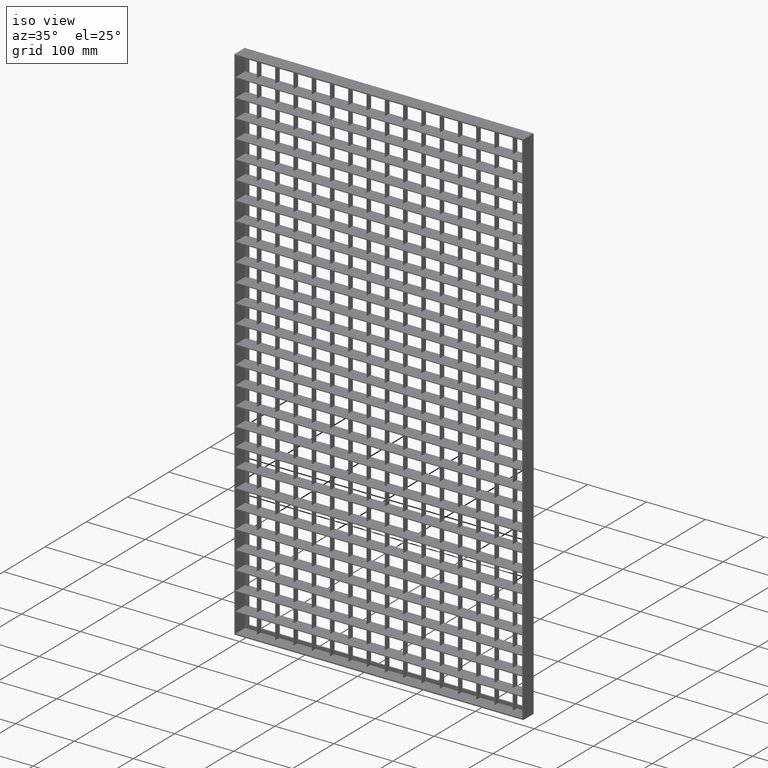
[diagram: clean part render]
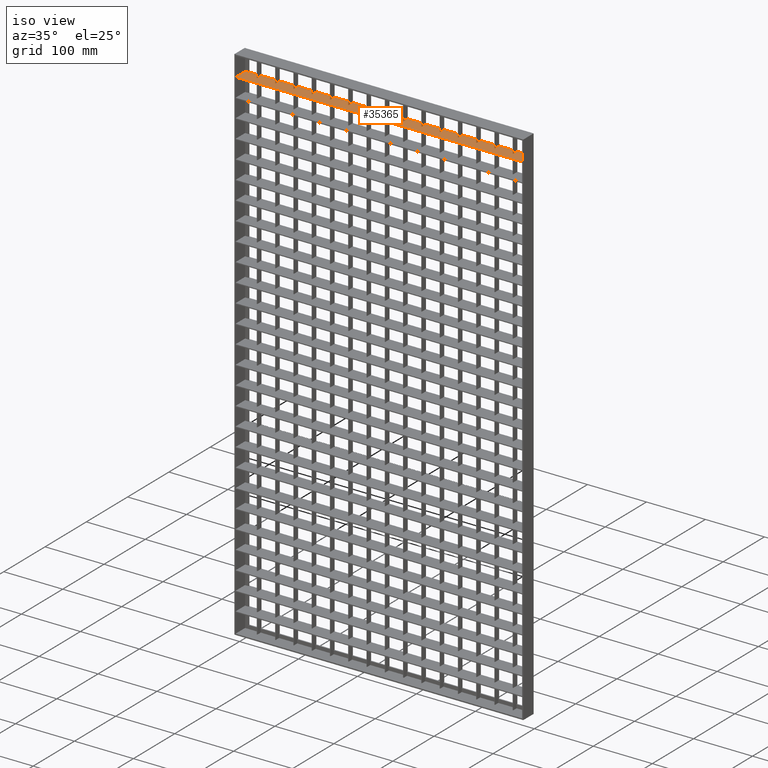
[diagram: same view with one face highlighted and labeled with its STEP entity id]
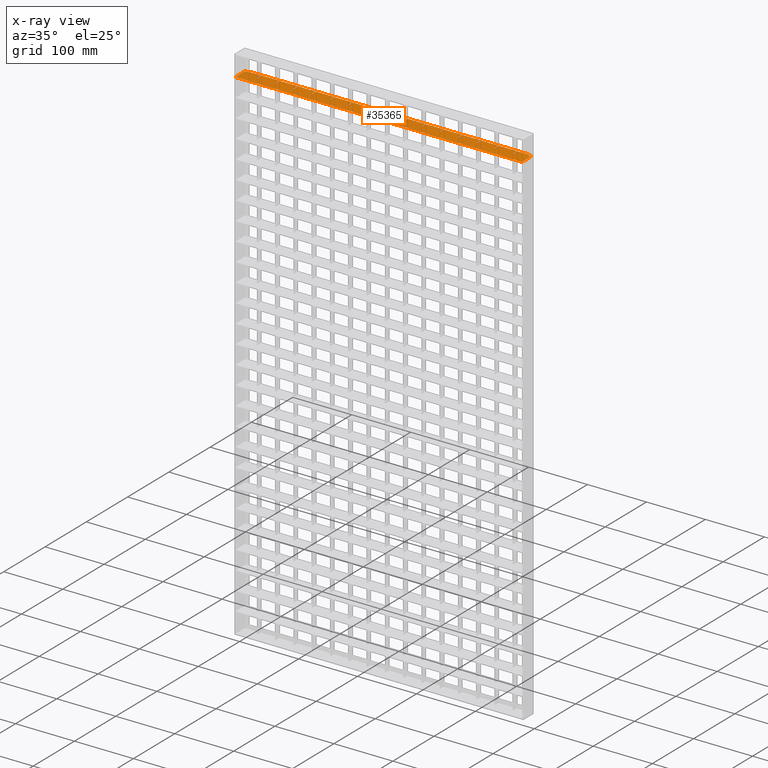
[diagram: x-ray of the same camera — body ghosted, the highlighted face saturated]
A machine part, iso view. The second image highlights one B-rep face of the part: STEP entity #35365.
The next image is the same camera in x-ray: the body ghosted, the highlighted face saturated — about 0% of this face is hidden behind the body in this view.
In plain terms, the highlighted planar face has unit normal (0, 0, 1).
Its self-contained STEP definition (entity closure, byte-faithful):
#45 = CARTESIAN_POINT ( 'NONE',  ( 400.4999999999999400, 2.500000000000000400, -34.75000000000039100 ) ) ;
#195 = CARTESIAN_POINT ( 'NONE',  ( 213.5000000000000000, 12.50000000000000000, -34.75000000000039100 ) ) ;
#239 = DIRECTION ( 'NONE',  ( 0.0000000000000000000, -1.000000000000000000, 0.0000000000000000000 ) ) ;
#420 = ORIENTED_EDGE ( 'NONE', *, *, #40923, .T. ) ;
#457 = EDGE_CURVE ( 'NONE', #58405, #62371, #7587, .T. ) ;
#1159 = VERTEX_POINT ( 'NONE', #25855 ) ;
#1256 = CARTESIAN_POINT ( 'NONE',  ( 89.50000000000000000, 12.50000000000000000, -34.75000000000039100 ) ) ;
#1437 = DIRECTION ( 'NONE',  ( -0.0000000000000000000, 1.000000000000000000, 0.0000000000000000000 ) ) ;
#1441 = LINE ( 'NONE', #50923, #51325 ) ;
#1458 = EDGE_CURVE ( 'NONE', #45256, #39838, #32324, .T. ) ;
#1656 = DIRECTION ( 'NONE',  ( 0.0000000000000000000, -1.000000000000000000, 0.0000000000000000000 ) ) ;
#1835 = VECTOR ( 'NONE', #16561, 1000.000000000000000 ) ;
#1879 = CARTESIAN_POINT ( 'NONE',  ( 368.5000000000000600, 2.500000000000000900, -34.75000000000039100 ) ) ;
#2067 = LINE ( 'NONE', #33816, #25485 ) ;
#2158 = DIRECTION ( 'NONE',  ( 0.0000000000000000000, -1.000000000000000000, 0.0000000000000000000 ) ) ;
#2196 = LINE ( 'NONE', #51690, #43740 ) ;
#2312 = PLANE ( 'NONE',  #35606 ) ;
#2340 = VERTEX_POINT ( 'NONE', #1879 ) ;
#2350 = VERTEX_POINT ( 'NONE', #50255 ) ;
#2392 = CARTESIAN_POINT ( 'NONE',  ( 513.0449595727365000, 12.50000000000015500, -34.75000000000039100 ) ) ;
#2417 = CARTESIAN_POINT ( 'NONE',  ( 513.0449595727365000, 12.50000000000015500, -34.75000000000039100 ) ) ;
#2425 = CARTESIAN_POINT ( 'NONE',  ( 399.4999999999999400, -12.49999999999984500, -34.75000000000039100 ) ) ;
#2435 = VECTOR ( 'NONE', #14772, 1000.000000000000000 ) ;
#2487 = VERTEX_POINT ( 'NONE', #12363 ) ;
#2520 = DIRECTION ( 'NONE',  ( 0.0000000000000000000, 0.0000000000000000000, 1.000000000000000000 ) ) ;
#2525 = ORIENTED_EDGE ( 'NONE', *, *, #7518, .T. ) ;
#2628 = ORIENTED_EDGE ( 'NONE', *, *, #20465, .F. ) ;
#2955 = CARTESIAN_POINT ( 'NONE',  ( 275.4999999999999400, 2.500000000000000900, -34.75000000000039100 ) ) ;
#3207 = ORIENTED_EDGE ( 'NONE', *, *, #43802, .T. ) ;
#3215 = CARTESIAN_POINT ( 'NONE',  ( 461.5000000000000000, 12.50000000000014000, -34.75000000000039100 ) ) ;
#3291 = LINE ( 'NONE', #30317, #32016 ) ;
#3404 = VERTEX_POINT ( 'NONE', #1256 ) ;
#3492 = LINE ( 'NONE', #30544, #39013 ) ;
#3680 = CARTESIAN_POINT ( 'NONE',  ( 430.5000000000000000, -12.49999999999984500, -34.75000000000039100 ) ) ;
#3779 = VECTOR ( 'NONE', #27088, 1000.000000000000000 ) ;
#3806 = ORIENTED_EDGE ( 'NONE', *, *, #27882, .T. ) ;
#3833 = CARTESIAN_POINT ( 'NONE',  ( 2.000000000000001800, -12.50000000000000200, -34.75000000000039100 ) ) ;
#4048 = VERTEX_POINT ( 'NONE', #19305 ) ;
#4051 = LINE ( 'NONE', #42878, #33505 ) ;
#4130 = CARTESIAN_POINT ( 'NONE',  ( 306.5000000000000000, 2.500000000000000900, -34.75000000000039100 ) ) ;
#4219 = VECTOR ( 'NONE', #29407, 1000.000000000000000 ) ;
#4289 = LINE ( 'NONE', #30604, #54202 ) ;
#4372 = CARTESIAN_POINT ( 'NONE',  ( 90.50000000000002800, 2.500000000000000400, -34.75000000000039100 ) ) ;
#4667 = DIRECTION ( 'NONE',  ( 0.0000000000000000000, -1.000000000000000000, 0.0000000000000000000 ) ) ;
#5007 = CARTESIAN_POINT ( 'NONE',  ( 513.0449595727365000, 2.499999999999977800, -34.75000000000039100 ) ) ;
#5364 = EDGE_CURVE ( 'NONE', #1159, #47856, #39196, .T. ) ;
#5405 = EDGE_CURVE ( 'NONE', #62405, #55185, #40693, .T. ) ;
#5467 = VERTEX_POINT ( 'NONE', #35978 ) ;
#5498 = LINE ( 'NONE', #42215, #24472 ) ;
#5500 = VERTEX_POINT ( 'NONE', #22624 ) ;
#5584 = VERTEX_POINT ( 'NONE', #22829 ) ;
#5623 = LINE ( 'NONE', #15605, #62361 ) ;
#5758 = CARTESIAN_POINT ( 'NONE',  ( 307.5000000000000000, 2.500000000000000400, -34.75000000000039100 ) ) ;
#6011 = DIRECTION ( 'NONE',  ( 0.0000000000000000000, -1.000000000000000000, 0.0000000000000000000 ) ) ;
#6021 = CARTESIAN_POINT ( 'NONE',  ( 2.000000000000002700, 10.50000000000000500, -34.75000000000039100 ) ) ;
#6086 = ORIENTED_EDGE ( 'NONE', *, *, #24263, .F. ) ;
#6192 = EDGE_CURVE ( 'NONE', #3404, #1159, #15578, .T. ) ;
#6199 = CARTESIAN_POINT ( 'NONE',  ( 121.5000000000000000, 12.50000000000003600, -34.75000000000039100 ) ) ;
#6449 = DIRECTION ( 'NONE',  ( -1.000000000000000000, 4.336808689942013800E-016, 0.0000000000000000000 ) ) ;
#6481 = EDGE_CURVE ( 'NONE', #58776, #50139, #48891, .T. ) ;
#6517 = EDGE_CURVE ( 'NONE', #39181, #38581, #3492, .T. ) ;
#6590 = VERTEX_POINT ( 'NONE', #56144 ) ;
#6814 = LINE ( 'NONE', #21499, #15082 ) ;
#7056 = CARTESIAN_POINT ( 'NONE',  ( 513.0449595727365000, 12.50000000000015500, -34.75000000000039100 ) ) ;
#7086 = VERTEX_POINT ( 'NONE', #53887 ) ;
#7150 = VECTOR ( 'NONE', #55174, 1000.000000000000000 ) ;
#7217 = DIRECTION ( 'NONE',  ( -1.000000000000000000, 4.336808689942013800E-016, 0.0000000000000000000 ) ) ;
#7249 = VERTEX_POINT ( 'NONE', #60669 ) ;
#7251 = EDGE_CURVE ( 'NONE', #37917, #39838, #53347, .T. ) ;
#7346 = VECTOR ( 'NONE', #18646, 1000.000000000000000 ) ;
#7393 = EDGE_CURVE ( 'NONE', #49762, #15884, #26015, .T. ) ;
#7452 = DIRECTION ( 'NONE',  ( 0.0000000000000000000, -1.000000000000000000, 0.0000000000000000000 ) ) ;
#7518 = EDGE_CURVE ( 'NONE', #4048, #52574, #36692, .T. ) ;
#7587 = LINE ( 'NONE', #39836, #17408 ) ;
#7639 = DIRECTION ( 'NONE',  ( -1.000000000000000000, -3.061616997868382600E-016, 0.0000000000000000000 ) ) ;
#7771 = CARTESIAN_POINT ( 'NONE',  ( 275.4999999999999400, -12.49999999999984500, -34.75000000000039100 ) ) ;
#7781 = EDGE_CURVE ( 'NONE', #11645, #37917, #60174, .T. ) ;
#8166 = LINE ( 'NONE', #7771, #27108 ) ;
#8193 = ORIENTED_EDGE ( 'NONE', *, *, #47015, .T. ) ;
#8197 = VECTOR ( 'NONE', #31171, 1000.000000000000000 ) ;
#8275 = VECTOR ( 'NONE', #19281, 1000.000000000000000 ) ;
#8292 = DIRECTION ( 'NONE',  ( -8.673617379884036500E-016, -1.000000000000000000, 0.0000000000000000000 ) ) ;
#8324 = CARTESIAN_POINT ( 'NONE',  ( 214.5000000000000300, 2.500000000000000400, -34.75000000000039100 ) ) ;
#8490 = DIRECTION ( 'NONE',  ( -0.0000000000000000000, 1.000000000000000000, 0.0000000000000000000 ) ) ;
#8650 = DIRECTION ( 'NONE',  ( 0.0000000000000000000, -1.000000000000000000, 0.0000000000000000000 ) ) ;
#8747 = VECTOR ( 'NONE', #58371, 1000.000000000000000 ) ;
#8953 = VECTOR ( 'NONE', #8292, 1000.000000000000000 ) ;
#8996 = DIRECTION ( 'NONE',  ( -1.000000000000000000, -3.061616997868382600E-016, 0.0000000000000000000 ) ) ;
#9010 = LINE ( 'NONE', #18197, #3779 ) ;
#9073 = DIRECTION ( 'NONE',  ( -0.0000000000000000000, 1.000000000000000000, 0.0000000000000000000 ) ) ;
#9214 = VECTOR ( 'NONE', #7452, 1000.000000000000000 ) ;
#9416 = DIRECTION ( 'NONE',  ( -1.000000000000000000, 4.336808689942013800E-016, 0.0000000000000000000 ) ) ;
#9649 = VERTEX_POINT ( 'NONE', #3215 ) ;
#9705 = CARTESIAN_POINT ( 'NONE',  ( 513.0449595727365000, 12.50000000000015500, -34.75000000000039100 ) ) ;
#9773 = CARTESIAN_POINT ( 'NONE',  ( 337.5000000000000000, 12.50000000000010100, -34.75000000000039100 ) ) ;
#10568 = LINE ( 'NONE', #3680, #26496 ) ;
#10656 = ORIENTED_EDGE ( 'NONE', *, *, #13612, .T. ) ;
#10848 = CARTESIAN_POINT ( 'NONE',  ( 338.5000000000000000, -12.49999999999984500, -34.75000000000039100 ) ) ;
#11087 = CARTESIAN_POINT ( 'NONE',  ( 28.49999999999997200, 2.500000000000000400, -34.75000000000039100 ) ) ;
#11119 = VERTEX_POINT ( 'NONE', #19191 ) ;
#11343 = DIRECTION ( 'NONE',  ( -1.000000000000000000, -3.061616997868382600E-016, 0.0000000000000000000 ) ) ;
#11354 = VECTOR ( 'NONE', #48939, 1000.000000000000000 ) ;
#11412 = ORIENTED_EDGE ( 'NONE', *, *, #25283, .T. ) ;
#11634 = CARTESIAN_POINT ( 'NONE',  ( 513.0449595727365000, 12.50000000000015500, -34.75000000000039100 ) ) ;
#11645 = VERTEX_POINT ( 'NONE', #42379 ) ;
#12000 = DIRECTION ( 'NONE',  ( -1.000000000000000000, -3.061616997868382600E-016, 0.0000000000000000000 ) ) ;
#12183 = DIRECTION ( 'NONE',  ( -0.0000000000000000000, 1.000000000000000000, 0.0000000000000000000 ) ) ;
#12193 = CARTESIAN_POINT ( 'NONE',  ( 461.5000000000000000, 2.500000000000000900, -34.75000000000039100 ) ) ;
#12363 = CARTESIAN_POINT ( 'NONE',  ( 152.4999999999999700, 2.500000000000000400, -34.75000000000039100 ) ) ;
#12712 = VECTOR ( 'NONE', #7217, 1000.000000000000000 ) ;
#13186 = EDGE_CURVE ( 'NONE', #6590, #62405, #49330, .T. ) ;
#13612 = EDGE_CURVE ( 'NONE', #43448, #27538, #60664, .T. ) ;
#13655 = CARTESIAN_POINT ( 'NONE',  ( 513.0449595727365000, 12.50000000000015500, -34.75000000000039100 ) ) ;
#13754 = CARTESIAN_POINT ( 'NONE',  ( 399.4999999999999400, 2.500000000000000900, -34.75000000000039100 ) ) ;
#14071 = DIRECTION ( 'NONE',  ( -1.000000000000000000, -3.061616997868382600E-016, 0.0000000000000000000 ) ) ;
#14178 = LINE ( 'NONE', #2392, #53583 ) ;
#14206 = ORIENTED_EDGE ( 'NONE', *, *, #29432, .F. ) ;
#14285 = LINE ( 'NONE', #31249, #33229 ) ;
#14393 = CARTESIAN_POINT ( 'NONE',  ( 513.0449595727365000, 2.500000000000156800, -34.75000000000039100 ) ) ;
#14483 = LINE ( 'NONE', #9705, #51591 ) ;
#14493 = DIRECTION ( 'NONE',  ( 0.0000000000000000000, -1.000000000000000000, 0.0000000000000000000 ) ) ;
#14514 = VECTOR ( 'NONE', #12000, 1000.000000000000000 ) ;
#14598 = LINE ( 'NONE', #19106, #22940 ) ;
#14745 = ORIENTED_EDGE ( 'NONE', *, *, #31006, .T. ) ;
#14761 = DIRECTION ( 'NONE',  ( 1.000000000000000000, 4.336808689942013800E-016, -0.0000000000000000000 ) ) ;
#14772 = DIRECTION ( 'NONE',  ( 0.0000000000000000000, -1.000000000000000000, 0.0000000000000000000 ) ) ;
#14779 = LINE ( 'NONE', #58047, #48756 ) ;
#14841 = LINE ( 'NONE', #53612, #45866 ) ;
#14847 = CARTESIAN_POINT ( 'NONE',  ( 58.50000000000000000, -12.49999999999984500, -34.75000000000039100 ) ) ;
#14872 = EDGE_CURVE ( 'NONE', #44880, #11645, #54107, .T. ) ;
#14873 = ORIENTED_EDGE ( 'NONE', *, *, #17688, .F. ) ;
#15082 = VECTOR ( 'NONE', #11343, 1000.000000000000000 ) ;
#15199 = CARTESIAN_POINT ( 'NONE',  ( 7.999999999999994700, 12.50000000000000500, -34.75000000000039100 ) ) ;
#15231 = VERTEX_POINT ( 'NONE', #53227 ) ;
#15314 = CARTESIAN_POINT ( 'NONE',  ( 368.5000000000000600, -12.49999999999984500, -34.75000000000039100 ) ) ;
#15578 = LINE ( 'NONE', #18967, #41300 ) ;
#15605 = CARTESIAN_POINT ( 'NONE',  ( 513.0449595727365000, 12.50000000000015500, -34.75000000000039100 ) ) ;
#15731 = VERTEX_POINT ( 'NONE', #8324 ) ;
#15742 = ORIENTED_EDGE ( 'NONE', *, *, #22016, .T. ) ;
#15841 = EDGE_CURVE ( 'NONE', #40349, #46988, #14598, .T. ) ;
#15884 = VERTEX_POINT ( 'NONE', #4130 ) ;
#16029 = DIRECTION ( 'NONE',  ( -1.000000000000000000, -3.061616997868382600E-016, 0.0000000000000000000 ) ) ;
#16214 = ORIENTED_EDGE ( 'NONE', *, *, #42338, .T. ) ;
#16561 = DIRECTION ( 'NONE',  ( -1.000000000000000000, -3.061616997868382600E-016, 0.0000000000000000000 ) ) ;
#16577 = LINE ( 'NONE', #24867, #57438 ) ;
#16787 = CARTESIAN_POINT ( 'NONE',  ( 513.0449595727365000, 2.500000000000170500, -34.75000000000039100 ) ) ;
#16896 = ORIENTED_EDGE ( 'NONE', *, *, #43835, .T. ) ;
#16935 = DIRECTION ( 'NONE',  ( 1.000000000000000000, 4.336808689942013800E-016, -0.0000000000000000000 ) ) ;
#16944 = ORIENTED_EDGE ( 'NONE', *, *, #26395, .T. ) ;
#17064 = LINE ( 'NONE', #43558, #4219 ) ;
#17111 = ORIENTED_EDGE ( 'NONE', *, *, #53057, .F. ) ;
#17311 = LINE ( 'NONE', #45991, #42221 ) ;
#17408 = VECTOR ( 'NONE', #54448, 1000.000000000000000 ) ;
#17483 = CARTESIAN_POINT ( 'NONE',  ( 245.5000000000000000, 12.50000000000007300, -34.75000000000039100 ) ) ;
#17688 = EDGE_CURVE ( 'NONE', #15731, #50170, #16577, .T. ) ;
#17770 = CARTESIAN_POINT ( 'NONE',  ( 214.5000000000000300, 12.50000000000006400, -34.75000000000039100 ) ) ;
#17909 = EDGE_CURVE ( 'NONE', #59274, #33828, #2196, .T. ) ;
#18197 = CARTESIAN_POINT ( 'NONE',  ( 513.0449595727365000, 2.500000000000210500, -34.75000000000039100 ) ) ;
#18526 = LINE ( 'NONE', #10848, #29133 ) ;
#18580 = LINE ( 'NONE', #57818, #50383 ) ;
#18587 = ORIENTED_EDGE ( 'NONE', *, *, #48136, .T. ) ;
#18640 = LINE ( 'NONE', #30819, #38317 ) ;
#18646 = DIRECTION ( 'NONE',  ( -1.000000000000000000, -3.061616997868382600E-016, 0.0000000000000000000 ) ) ;
#18767 = CARTESIAN_POINT ( 'NONE',  ( 90.50000000000002800, -12.49999999999984500, -34.75000000000039100 ) ) ;
#18927 = LINE ( 'NONE', #42483, #41596 ) ;
#18967 = CARTESIAN_POINT ( 'NONE',  ( 89.50000000000002800, -12.49999999999984500, -34.75000000000039100 ) ) ;
#19071 = EDGE_CURVE ( 'NONE', #46988, #15731, #45087, .T. ) ;
#19106 = CARTESIAN_POINT ( 'NONE',  ( 213.5000000000000300, -12.49999999999984500, -34.75000000000039100 ) ) ;
#19191 = CARTESIAN_POINT ( 'NONE',  ( 244.5000000000000000, 2.500000000000000000, -34.75000000000039100 ) ) ;
#19281 = DIRECTION ( 'NONE',  ( 1.000000000000000000, 4.336808689942013800E-016, -0.0000000000000000000 ) ) ;
#19305 = CARTESIAN_POINT ( 'NONE',  ( 462.5000000000000000, 2.500000000000000400, -34.75000000000039100 ) ) ;
#19329 = EDGE_CURVE ( 'NONE', #62371, #34275, #22414, .T. ) ;
#19388 = DIRECTION ( 'NONE',  ( -0.0000000000000000000, 1.000000000000000000, 0.0000000000000000000 ) ) ;
#19449 = CARTESIAN_POINT ( 'NONE',  ( 400.4999999999999400, -12.49999999999984500, -34.75000000000039100 ) ) ;
#19552 = CARTESIAN_POINT ( 'NONE',  ( 338.5000000000000000, 12.50000000000000000, -34.75000000000039100 ) ) ;
#19619 = CARTESIAN_POINT ( 'NONE',  ( 28.50000000000002500, 12.50000000000000500, -34.75000000000039100 ) ) ;
#19712 = ORIENTED_EDGE ( 'NONE', *, *, #22108, .F. ) ;
#19724 = DIRECTION ( 'NONE',  ( 0.0000000000000000000, -1.000000000000000000, 0.0000000000000000000 ) ) ;
#20007 = LINE ( 'NONE', #56699, #29832 ) ;
#20050 = CARTESIAN_POINT ( 'NONE',  ( 27.49999999999996800, 2.499999999999999600, -34.75000000000039100 ) ) ;
#20241 = VECTOR ( 'NONE', #14071, 1000.000000000000000 ) ;
#20372 = EDGE_CURVE ( 'NONE', #45256, #7249, #2067, .T. ) ;
#20465 = EDGE_CURVE ( 'NONE', #2487, #48224, #4289, .T. ) ;
#20615 = EDGE_CURVE ( 'NONE', #53032, #30776, #18640, .T. ) ;
#20786 = CARTESIAN_POINT ( 'NONE',  ( 152.5000000000000300, 12.50000000000004400, -34.75000000000039100 ) ) ;
#20974 = VECTOR ( 'NONE', #56940, 1000.000000000000000 ) ;
#21076 = ORIENTED_EDGE ( 'NONE', *, *, #5405, .T. ) ;
#21499 = CARTESIAN_POINT ( 'NONE',  ( 513.0449595727365000, 12.50000000000015500, -34.75000000000039100 ) ) ;
#21557 = VECTOR ( 'NONE', #2158, 1000.000000000000000 ) ;
#21934 = DIRECTION ( 'NONE',  ( 0.0000000000000000000, -1.000000000000000000, 0.0000000000000000000 ) ) ;
#22015 = CARTESIAN_POINT ( 'NONE',  ( 338.5000000000000000, 2.500000000000000400, -34.75000000000039100 ) ) ;
#22016 = EDGE_CURVE ( 'NONE', #15884, #43327, #4051, .T. ) ;
#22108 = EDGE_CURVE ( 'NONE', #11119, #48457, #51714, .T. ) ;
#22414 = LINE ( 'NONE', #24722, #8747 ) ;
#22493 = ORIENTED_EDGE ( 'NONE', *, *, #6481, .T. ) ;
#22624 = CARTESIAN_POINT ( 'NONE',  ( 244.5000000000000000, 12.50000000000000000, -34.75000000000039100 ) ) ;
#22647 = ORIENTED_EDGE ( 'NONE', *, *, #52038, .T. ) ;
#22684 = CARTESIAN_POINT ( 'NONE',  ( 7.999999999999992900, 10.50000000000000500, -34.75000000000039100 ) ) ;
#22829 = CARTESIAN_POINT ( 'NONE',  ( 369.5000000000000600, 2.500000000000000400, -34.75000000000039100 ) ) ;
#22940 = VECTOR ( 'NONE', #47673, 1000.000000000000000 ) ;
#23041 = VERTEX_POINT ( 'NONE', #3833 ) ;
#23267 = CARTESIAN_POINT ( 'NONE',  ( 400.4999999999999400, 12.50000000000000000, -34.75000000000039100 ) ) ;
#23369 = LINE ( 'NONE', #22684, #8953 ) ;
#23572 = ORIENTED_EDGE ( 'NONE', *, *, #43376, .T. ) ;
#23807 = DIRECTION ( 'NONE',  ( -0.0000000000000000000, 1.000000000000000000, 0.0000000000000000000 ) ) ;
#23810 = VERTEX_POINT ( 'NONE', #38001 ) ;
#23906 = ORIENTED_EDGE ( 'NONE', *, *, #31653, .T. ) ;
#24068 = CARTESIAN_POINT ( 'NONE',  ( 2.000000000000002700, 10.50000000000000500, -34.75000000000039100 ) ) ;
#24263 = EDGE_CURVE ( 'NONE', #30489, #58405, #47570, .T. ) ;
#24372 = EDGE_CURVE ( 'NONE', #42681, #59820, #23369, .T. ) ;
#24472 = VECTOR ( 'NONE', #8996, 1000.000000000000000 ) ;
#24589 = ORIENTED_EDGE ( 'NONE', *, *, #27157, .T. ) ;
#24650 = ORIENTED_EDGE ( 'NONE', *, *, #17909, .T. ) ;
#24701 = VECTOR ( 'NONE', #19388, 1000.000000000000000 ) ;
#24722 = CARTESIAN_POINT ( 'NONE',  ( 183.5000000000000000, -12.49999999999984500, -34.75000000000039100 ) ) ;
#24740 = EDGE_CURVE ( 'NONE', #34916, #46795, #14178, .T. ) ;
#24867 = CARTESIAN_POINT ( 'NONE',  ( 214.5000000000000300, -12.49999999999984500, -34.75000000000039100 ) ) ;
#25244 = CARTESIAN_POINT ( 'NONE',  ( 482.0000000000001700, 10.50000000000000500, -34.75000000000039100 ) ) ;
#25283 = EDGE_CURVE ( 'NONE', #51134, #38347, #28993, .T. ) ;
#25485 = VECTOR ( 'NONE', #4667, 1000.000000000000000 ) ;
#25634 = VERTEX_POINT ( 'NONE', #9773 ) ;
#25654 = EDGE_CURVE ( 'NONE', #50477, #39181, #27440, .T. ) ;
#25792 = ORIENTED_EDGE ( 'NONE', *, *, #31889, .T. ) ;
#25855 = CARTESIAN_POINT ( 'NONE',  ( 89.49999999999997200, 2.500000000000000400, -34.75000000000039100 ) ) ;
#25988 = CARTESIAN_POINT ( 'NONE',  ( 120.5000000000000000, -12.49999999999984500, -34.75000000000039100 ) ) ;
#26015 = LINE ( 'NONE', #42196, #41912 ) ;
#26217 = CARTESIAN_POINT ( 'NONE',  ( 27.49999999999999600, 12.50000000000000000, -34.75000000000039100 ) ) ;
#26303 = CARTESIAN_POINT ( 'NONE',  ( 431.5000000000000000, 2.500000000000000400, -34.75000000000039100 ) ) ;
#26316 = EDGE_CURVE ( 'NONE', #50139, #59274, #59926, .T. ) ;
#26330 = CARTESIAN_POINT ( 'NONE',  ( 430.5000000000000000, 2.500000000000000900, -34.75000000000039100 ) ) ;
#26387 = CARTESIAN_POINT ( 'NONE',  ( 488.0000000000001100, -12.49999999999984500, -34.75000000000039100 ) ) ;
#26395 = EDGE_CURVE ( 'NONE', #50477, #30776, #14483, .T. ) ;
#26496 = VECTOR ( 'NONE', #8490, 1000.000000000000000 ) ;
#26989 = LINE ( 'NONE', #28163, #7346 ) ;
#27088 = DIRECTION ( 'NONE',  ( 1.000000000000000000, 4.336808689942013800E-016, -0.0000000000000000000 ) ) ;
#27108 = VECTOR ( 'NONE', #41574, 1000.000000000000000 ) ;
#27138 = VERTEX_POINT ( 'NONE', #36212 ) ;
#27157 = EDGE_CURVE ( 'NONE', #23810, #51368, #50683, .T. ) ;
#27293 = EDGE_CURVE ( 'NONE', #54996, #53032, #9010, .T. ) ;
#27413 = LINE ( 'NONE', #35717, #14514 ) ;
#27440 = LINE ( 'NONE', #14847, #31982 ) ;
#27538 = VERTEX_POINT ( 'NONE', #45425 ) ;
#27882 = EDGE_CURVE ( 'NONE', #33828, #23810, #43703, .T. ) ;
#28010 = VECTOR ( 'NONE', #37497, 1000.000000000000000 ) ;
#28163 = CARTESIAN_POINT ( 'NONE',  ( 513.0449595727365000, 12.50000000000015500, -34.75000000000039100 ) ) ;
#28226 = EDGE_CURVE ( 'NONE', #3404, #5467, #41414, .T. ) ;
#28347 = VECTOR ( 'NONE', #9416, 1000.000000000000000 ) ;
#28373 = ORIENTED_EDGE ( 'NONE', *, *, #14872, .F. ) ;
#28413 = ORIENTED_EDGE ( 'NONE', *, *, #24372, .T. ) ;
#28571 = EDGE_CURVE ( 'NONE', #62614, #7086, #49816, .T. ) ;
#28591 = LINE ( 'NONE', #60172, #8197 ) ;
#28646 = ORIENTED_EDGE ( 'NONE', *, *, #15841, .F. ) ;
#28706 = VERTEX_POINT ( 'NONE', #36835 ) ;
#28801 = EDGE_CURVE ( 'NONE', #34485, #4048, #45987, .T. ) ;
#28993 = LINE ( 'NONE', #45359, #51706 ) ;
#29133 = VECTOR ( 'NONE', #6011, 1000.000000000000000 ) ;
#29173 = ORIENTED_EDGE ( 'NONE', *, *, #52342, .T. ) ;
#29407 = DIRECTION ( 'NONE',  ( -0.0000000000000000000, 1.000000000000000000, 0.0000000000000000000 ) ) ;
#29432 = EDGE_CURVE ( 'NONE', #38581, #5467, #14841, .T. ) ;
#29435 = ORIENTED_EDGE ( 'NONE', *, *, #43957, .F. ) ;
#29497 = CARTESIAN_POINT ( 'NONE',  ( 151.5000000000000000, 12.50000000000000000, -34.75000000000039100 ) ) ;
#29538 = FACE_OUTER_BOUND ( 'NONE', #51998, .T. ) ;
#29753 = VECTOR ( 'NONE', #1437, 1000.000000000000000 ) ;
#29832 = VECTOR ( 'NONE', #37878, 1000.000000000000000 ) ;
#30155 = EDGE_CURVE ( 'NONE', #7086, #25634, #17064, .T. ) ;
#30317 = CARTESIAN_POINT ( 'NONE',  ( 27.49999999999996800, -12.49999999999984500, -34.75000000000039100 ) ) ;
#30489 = VERTEX_POINT ( 'NONE', #37212 ) ;
#30544 = CARTESIAN_POINT ( 'NONE',  ( 513.0449595727365000, 2.500000000000196300, -34.75000000000039100 ) ) ;
#30604 = CARTESIAN_POINT ( 'NONE',  ( 152.4999999999999700, -12.49999999999984500, -34.75000000000039100 ) ) ;
#30760 = DIRECTION ( 'NONE',  ( 1.000000000000000000, 4.336808689942013800E-016, -0.0000000000000000000 ) ) ;
#30776 = VERTEX_POINT ( 'NONE', #19619 ) ;
#30819 = CARTESIAN_POINT ( 'NONE',  ( 28.49999999999997200, -12.49999999999984500, -34.75000000000039100 ) ) ;
#30823 = CARTESIAN_POINT ( 'NONE',  ( 58.50000000000000000, 12.50000000000000000, -34.75000000000039100 ) ) ;
#30874 = VECTOR ( 'NONE', #16935, 1000.000000000000000 ) ;
#30991 = DIRECTION ( 'NONE',  ( -1.000000000000000000, 4.336808689942013800E-016, 0.0000000000000000000 ) ) ;
#31006 = EDGE_CURVE ( 'NONE', #51368, #5584, #17311, .T. ) ;
#31171 = DIRECTION ( 'NONE',  ( -1.000000000000000000, 0.0000000000000000000, 0.0000000000000000000 ) ) ;
#31208 = ORIENTED_EDGE ( 'NONE', *, *, #28571, .T. ) ;
#31249 = CARTESIAN_POINT ( 'NONE',  ( 2.000000000000002700, -12.50000000000000000, -34.75000000000039100 ) ) ;
#31653 = EDGE_CURVE ( 'NONE', #52574, #9649, #33075, .T. ) ;
#31889 = EDGE_CURVE ( 'NONE', #48740, #42681, #26989, .T. ) ;
#31982 = VECTOR ( 'NONE', #19724, 1000.000000000000000 ) ;
#32016 = VECTOR ( 'NONE', #44912, 1000.000000000000000 ) ;
#32069 = CARTESIAN_POINT ( 'NONE',  ( 121.5000000000000000, -12.49999999999984500, -34.75000000000039100 ) ) ;
#32195 = ORIENTED_EDGE ( 'NONE', *, *, #62128, .F. ) ;
#32232 = VECTOR ( 'NONE', #14761, 1000.000000000000000 ) ;
#32324 = LINE ( 'NONE', #52694, #20974 ) ;
#32337 = ORIENTED_EDGE ( 'NONE', *, *, #44750, .T. ) ;
#32385 = VECTOR ( 'NONE', #60075, 1000.000000000000000 ) ;
#32528 = VECTOR ( 'NONE', #7639, 1000.000000000000000 ) ;
#32618 = DIRECTION ( 'NONE',  ( 0.0000000000000000000, -1.000000000000000000, 0.0000000000000000000 ) ) ;
#32717 = CARTESIAN_POINT ( 'NONE',  ( 121.5000000000000000, 2.500000000000000400, -34.75000000000039100 ) ) ;
#33007 = VECTOR ( 'NONE', #40265, 1000.000000000000000 ) ;
#33075 = LINE ( 'NONE', #35579, #36136 ) ;
#33218 = EDGE_CURVE ( 'NONE', #25634, #27138, #14779, .T. ) ;
#33229 = VECTOR ( 'NONE', #46243, 1000.000000000000000 ) ;
#33505 = VECTOR ( 'NONE', #37644, 1000.000000000000000 ) ;
#33581 = ORIENTED_EDGE ( 'NONE', *, *, #7393, .T. ) ;
#33687 = DIRECTION ( 'NONE',  ( -1.000000000000000000, -3.061616997868382600E-016, 0.0000000000000000000 ) ) ;
#33816 = CARTESIAN_POINT ( 'NONE',  ( 151.4999999999999700, -12.49999999999984500, -34.75000000000039100 ) ) ;
#33822 = ORIENTED_EDGE ( 'NONE', *, *, #1458, .T. ) ;
#33828 = VERTEX_POINT ( 'NONE', #13754 ) ;
#34009 = CARTESIAN_POINT ( 'NONE',  ( 369.5000000000000600, 12.50000000000000000, -34.75000000000039100 ) ) ;
#34119 = DIRECTION ( 'NONE',  ( -1.000000000000000000, -3.061616997868382600E-016, 0.0000000000000000000 ) ) ;
#34275 = VERTEX_POINT ( 'NONE', #57161 ) ;
#34485 = VERTEX_POINT ( 'NONE', #39147 ) ;
#34615 = ORIENTED_EDGE ( 'NONE', *, *, #55209, .T. ) ;
#34916 = VERTEX_POINT ( 'NONE', #47332 ) ;
#35365 = ADVANCED_FACE ( 'NONE', ( #29538 ), #2312, .T. ) ;
#35402 = CARTESIAN_POINT ( 'NONE',  ( 513.0449595727365000, 2.500000000000116800, -34.75000000000039100 ) ) ;
#35474 = ORIENTED_EDGE ( 'NONE', *, *, #20615, .F. ) ;
#35579 = CARTESIAN_POINT ( 'NONE',  ( 461.5000000000000000, -12.49999999999984500, -34.75000000000039100 ) ) ;
#35606 = AXIS2_PLACEMENT_3D ( 'NONE', #40928, #2520, #41138 ) ;
#35717 = CARTESIAN_POINT ( 'NONE',  ( 513.0449595727365000, 12.50000000000015500, -34.75000000000039100 ) ) ;
#35820 = CARTESIAN_POINT ( 'NONE',  ( 213.4999999999999700, 2.500000000000000400, -34.75000000000039100 ) ) ;
#35978 = CARTESIAN_POINT ( 'NONE',  ( 59.50000000000005000, 12.50000000000001600, -34.75000000000039100 ) ) ;
#36007 = DIRECTION ( 'NONE',  ( -0.0000000000000000000, 1.000000000000000000, 0.0000000000000000000 ) ) ;
#36136 = VECTOR ( 'NONE', #36007, 1000.000000000000000 ) ;
#36212 = CARTESIAN_POINT ( 'NONE',  ( 307.5000000000000000, 12.50000000000000000, -34.75000000000039100 ) ) ;
#36357 = VERTEX_POINT ( 'NONE', #24068 ) ;
#36460 = ORIENTED_EDGE ( 'NONE', *, *, #50091, .T. ) ;
#36607 = ORIENTED_EDGE ( 'NONE', *, *, #50605, .T. ) ;
#36636 = DIRECTION ( 'NONE',  ( 0.0000000000000000000, -1.000000000000000000, 0.0000000000000000000 ) ) ;
#36692 = LINE ( 'NONE', #5007, #28347 ) ;
#36835 = CARTESIAN_POINT ( 'NONE',  ( 90.50000000000002800, 12.50000000000002500, -34.75000000000039100 ) ) ;
#37102 = ORIENTED_EDGE ( 'NONE', *, *, #7781, .F. ) ;
#37212 = CARTESIAN_POINT ( 'NONE',  ( 182.5000000000000000, 12.50000000000000000, -34.75000000000039100 ) ) ;
#37377 = CARTESIAN_POINT ( 'NONE',  ( 120.5000000000000000, 12.50000000000000000, -34.75000000000039100 ) ) ;
#37477 = VECTOR ( 'NONE', #33687, 1000.000000000000000 ) ;
#37497 = DIRECTION ( 'NONE',  ( -1.000000000000000000, -3.061616997868382600E-016, 0.0000000000000000000 ) ) ;
#37644 = DIRECTION ( 'NONE',  ( -0.0000000000000000000, 1.000000000000000000, 0.0000000000000000000 ) ) ;
#37676 = ORIENTED_EDGE ( 'NONE', *, *, #20372, .F. ) ;
#37878 = DIRECTION ( 'NONE',  ( -1.000000000000000000, 4.336808689942013800E-016, 0.0000000000000000000 ) ) ;
#37880 = CARTESIAN_POINT ( 'NONE',  ( 513.0449595727365000, 2.500000000000130600, -34.75000000000039100 ) ) ;
#37917 = VERTEX_POINT ( 'NONE', #32717 ) ;
#38000 = DIRECTION ( 'NONE',  ( -1.000000000000000000, 4.336808689942013800E-016, 0.0000000000000000000 ) ) ;
#38001 = CARTESIAN_POINT ( 'NONE',  ( 399.4999999999999400, 12.50000000000012100, -34.75000000000039100 ) ) ;
#38192 = VECTOR ( 'NONE', #59956, 1000.000000000000000 ) ;
#38317 = VECTOR ( 'NONE', #12183, 1000.000000000000000 ) ;
#38347 = VERTEX_POINT ( 'NONE', #26330 ) ;
#38581 = VERTEX_POINT ( 'NONE', #57615 ) ;
#39013 = VECTOR ( 'NONE', #30760, 1000.000000000000000 ) ;
#39147 = CARTESIAN_POINT ( 'NONE',  ( 462.5000000000000000, 12.50000000000000000, -34.75000000000039100 ) ) ;
#39181 = VERTEX_POINT ( 'NONE', #44748 ) ;
#39196 = LINE ( 'NONE', #55017, #30874 ) ;
#39358 = LINE ( 'NONE', #52280, #28010 ) ;
#39529 = ORIENTED_EDGE ( 'NONE', *, *, #24740, .T. ) ;
#39836 = CARTESIAN_POINT ( 'NONE',  ( 513.0449595727365000, 2.500000000000142600, -34.75000000000039100 ) ) ;
#39838 = VERTEX_POINT ( 'NONE', #6199 ) ;
#40265 = DIRECTION ( 'NONE',  ( -1.000000000000000000, -3.061616997868382600E-016, 0.0000000000000000000 ) ) ;
#40349 = VERTEX_POINT ( 'NONE', #195 ) ;
#40693 = LINE ( 'NONE', #55435, #12712 ) ;
#40923 = EDGE_CURVE ( 'NONE', #9649, #15231, #48022, .T. ) ;
#40928 = CARTESIAN_POINT ( 'NONE',  ( 513.0449595727365000, -12.49999999999984500, -34.75000000000039100 ) ) ;
#41051 = ORIENTED_EDGE ( 'NONE', *, *, #59116, .F. ) ;
#41090 = EDGE_CURVE ( 'NONE', #44880, #28706, #60133, .T. ) ;
#41104 = CARTESIAN_POINT ( 'NONE',  ( 513.0449595727365000, 12.50000000000015500, -34.75000000000039100 ) ) ;
#41138 = DIRECTION ( 'NONE',  ( 1.000000000000000000, 0.0000000000000000000, -0.0000000000000000000 ) ) ;
#41300 = VECTOR ( 'NONE', #14493, 1000.000000000000000 ) ;
#41414 = LINE ( 'NONE', #13655, #20241 ) ;
#41574 = DIRECTION ( 'NONE',  ( -0.0000000000000000000, 1.000000000000000000, 0.0000000000000000000 ) ) ;
#41596 = VECTOR ( 'NONE', #9073, 1000.000000000000000 ) ;
#41817 = ORIENTED_EDGE ( 'NONE', *, *, #19329, .F. ) ;
#41822 = ORIENTED_EDGE ( 'NONE', *, *, #26316, .T. ) ;
#41893 = ORIENTED_EDGE ( 'NONE', *, *, #5364, .F. ) ;
#41912 = VECTOR ( 'NONE', #38000, 1000.000000000000000 ) ;
#41990 = DIRECTION ( 'NONE',  ( -0.0000000000000000000, 1.000000000000000000, 0.0000000000000000000 ) ) ;
#42033 = EDGE_CURVE ( 'NONE', #27538, #34485, #5498, .T. ) ;
#42196 = CARTESIAN_POINT ( 'NONE',  ( 513.0449595727365000, 2.499999999999910300, -34.75000000000039100 ) ) ;
#42215 = CARTESIAN_POINT ( 'NONE',  ( 513.0449595727365000, 12.50000000000015500, -34.75000000000039100 ) ) ;
#42221 = VECTOR ( 'NONE', #1656, 1000.000000000000000 ) ;
#42338 = EDGE_CURVE ( 'NONE', #2340, #34916, #53185, .T. ) ;
#42379 = CARTESIAN_POINT ( 'NONE',  ( 120.5000000000000000, 2.500000000000000000, -34.75000000000039100 ) ) ;
#42483 = CARTESIAN_POINT ( 'NONE',  ( 245.5000000000000000, -12.49999999999984500, -34.75000000000039100 ) ) ;
#42602 = LINE ( 'NONE', #7056, #1835 ) ;
#42681 = VERTEX_POINT ( 'NONE', #15199 ) ;
#42689 = VERTEX_POINT ( 'NONE', #47990 ) ;
#42843 = EDGE_CURVE ( 'NONE', #60764, #50655, #27413, .T. ) ;
#42878 = CARTESIAN_POINT ( 'NONE',  ( 306.5000000000000000, -12.49999999999984500, -34.75000000000039100 ) ) ;
#43327 = VERTEX_POINT ( 'NONE', #57513 ) ;
#43376 = EDGE_CURVE ( 'NONE', #59820, #36357, #46927, .T. ) ;
#43448 = VERTEX_POINT ( 'NONE', #25244 ) ;
#43558 = CARTESIAN_POINT ( 'NONE',  ( 337.5000000000000000, -12.49999999999984500, -34.75000000000039100 ) ) ;
#43571 = ORIENTED_EDGE ( 'NONE', *, *, #33218, .T. ) ;
#43703 = LINE ( 'NONE', #2425, #32385 ) ;
#43740 = VECTOR ( 'NONE', #61421, 1000.000000000000000 ) ;
#43742 = ORIENTED_EDGE ( 'NONE', *, *, #6517, .F. ) ;
#43802 = EDGE_CURVE ( 'NONE', #40349, #34275, #39358, .T. ) ;
#43835 = EDGE_CURVE ( 'NONE', #38347, #58776, #10568, .T. ) ;
#43957 = EDGE_CURVE ( 'NONE', #7249, #2487, #46090, .T. ) ;
#44051 = DIRECTION ( 'NONE',  ( 1.000000000000000000, 4.336808689942013800E-016, -0.0000000000000000000 ) ) ;
#44123 = ORIENTED_EDGE ( 'NONE', *, *, #13186, .T. ) ;
#44748 = CARTESIAN_POINT ( 'NONE',  ( 58.49999999999994300, 2.499999999999999100, -34.75000000000039100 ) ) ;
#44750 = EDGE_CURVE ( 'NONE', #15231, #51134, #1441, .T. ) ;
#44880 = VERTEX_POINT ( 'NONE', #37377 ) ;
#44912 = DIRECTION ( 'NONE',  ( 0.0000000000000000000, -1.000000000000000000, 0.0000000000000000000 ) ) ;
#45087 = LINE ( 'NONE', #37880, #32232 ) ;
#45256 = VERTEX_POINT ( 'NONE', #29497 ) ;
#45359 = CARTESIAN_POINT ( 'NONE',  ( 513.0449595727365000, 2.499999999999964000, -34.75000000000039100 ) ) ;
#45425 = CARTESIAN_POINT ( 'NONE',  ( 482.0000000000001100, 12.50000000000000500, -34.75000000000039100 ) ) ;
#45447 = ORIENTED_EDGE ( 'NONE', *, *, #42033, .T. ) ;
#45450 = DIRECTION ( 'NONE',  ( -1.000000000000000000, -3.061616997868382600E-016, 0.0000000000000000000 ) ) ;
#45702 = CARTESIAN_POINT ( 'NONE',  ( 276.4999999999999400, -12.49999999999984500, -34.75000000000039100 ) ) ;
#45866 = VECTOR ( 'NONE', #23807, 1000.000000000000000 ) ;
#45901 = CARTESIAN_POINT ( 'NONE',  ( 244.5000000000000000, -12.49999999999984500, -34.75000000000039100 ) ) ;
#45911 = CARTESIAN_POINT ( 'NONE',  ( 183.5000000000000000, 2.500000000000000400, -34.75000000000039100 ) ) ;
#45987 = LINE ( 'NONE', #47980, #61133 ) ;
#45991 = CARTESIAN_POINT ( 'NONE',  ( 369.5000000000000600, -12.49999999999984500, -34.75000000000039100 ) ) ;
#46090 = LINE ( 'NONE', #14393, #8275 ) ;
#46243 = DIRECTION ( 'NONE',  ( -0.0000000000000000000, -1.000000000000000000, 0.0000000000000000000 ) ) ;
#46539 = VECTOR ( 'NONE', #41990, 1000.000000000000000 ) ;
#46732 = CARTESIAN_POINT ( 'NONE',  ( 307.5000000000000000, -12.49999999999984500, -34.75000000000039100 ) ) ;
#46795 = VERTEX_POINT ( 'NONE', #19552 ) ;
#46927 = LINE ( 'NONE', #6021, #11354 ) ;
#46988 = VERTEX_POINT ( 'NONE', #35820 ) ;
#47015 = EDGE_CURVE ( 'NONE', #46795, #62614, #18526, .T. ) ;
#47215 = VECTOR ( 'NONE', #59702, 1000.000000000000000 ) ;
#47252 = ORIENTED_EDGE ( 'NONE', *, *, #6192, .F. ) ;
#47325 = VECTOR ( 'NONE', #36636, 1000.000000000000000 ) ;
#47332 = CARTESIAN_POINT ( 'NONE',  ( 368.5000000000000600, 12.50000000000011000, -34.75000000000039100 ) ) ;
#47552 = ORIENTED_EDGE ( 'NONE', *, *, #42843, .T. ) ;
#47570 = LINE ( 'NONE', #52487, #58954 ) ;
#47673 = DIRECTION ( 'NONE',  ( 0.0000000000000000000, -1.000000000000000000, 0.0000000000000000000 ) ) ;
#47856 = VERTEX_POINT ( 'NONE', #4372 ) ;
#47980 = CARTESIAN_POINT ( 'NONE',  ( 462.5000000000000000, -12.49999999999984500, -34.75000000000039100 ) ) ;
#47990 = CARTESIAN_POINT ( 'NONE',  ( 488.0000000000001100, 10.50000000000000500, -34.75000000000039100 ) ) ;
#48022 = LINE ( 'NONE', #48268, #37477 ) ;
#48136 = EDGE_CURVE ( 'NONE', #30489, #48224, #42602, .T. ) ;
#48224 = VERTEX_POINT ( 'NONE', #20786 ) ;
#48268 = CARTESIAN_POINT ( 'NONE',  ( 513.0449595727365000, 12.50000000000015500, -34.75000000000039100 ) ) ;
#48457 = VERTEX_POINT ( 'NONE', #57570 ) ;
#48595 = ORIENTED_EDGE ( 'NONE', *, *, #28226, .T. ) ;
#48740 = VERTEX_POINT ( 'NONE', #26217 ) ;
#48756 = VECTOR ( 'NONE', #34119, 1000.000000000000000 ) ;
#48891 = LINE ( 'NONE', #41104, #33007 ) ;
#48939 = DIRECTION ( 'NONE',  ( -1.000000000000000000, 0.0000000000000000000, 0.0000000000000000000 ) ) ;
#49330 = LINE ( 'NONE', #45702, #9214 ) ;
#49386 = CARTESIAN_POINT ( 'NONE',  ( 482.0000000000001700, 10.50000000000036400, -34.75000000000039100 ) ) ;
#49762 = VERTEX_POINT ( 'NONE', #5758 ) ;
#49775 = ORIENTED_EDGE ( 'NONE', *, *, #25654, .F. ) ;
#49816 = LINE ( 'NONE', #59346, #56631 ) ;
#50091 = EDGE_CURVE ( 'NONE', #27138, #49762, #59839, .T. ) ;
#50139 = VERTEX_POINT ( 'NONE', #23267 ) ;
#50170 = VERTEX_POINT ( 'NONE', #17770 ) ;
#50246 = ORIENTED_EDGE ( 'NONE', *, *, #30155, .T. ) ;
#50255 = CARTESIAN_POINT ( 'NONE',  ( 488.0000000000001100, -12.50000000000000400, -34.75000000000039100 ) ) ;
#50383 = VECTOR ( 'NONE', #53571, 1000.000000000000000 ) ;
#50444 = DIRECTION ( 'NONE',  ( -0.0000000000000000000, 1.000000000000000000, 0.0000000000000000000 ) ) ;
#50477 = VERTEX_POINT ( 'NONE', #30823 ) ;
#50605 = EDGE_CURVE ( 'NONE', #36357, #23041, #14285, .T. ) ;
#50655 = VERTEX_POINT ( 'NONE', #17483 ) ;
#50683 = LINE ( 'NONE', #2417, #32528 ) ;
#50790 = ORIENTED_EDGE ( 'NONE', *, *, #28801, .T. ) ;
#50923 = CARTESIAN_POINT ( 'NONE',  ( 431.5000000000000000, -12.49999999999984500, -34.75000000000039100 ) ) ;
#51123 = EDGE_CURVE ( 'NONE', #42689, #43448, #28591, .T. ) ;
#51134 = VERTEX_POINT ( 'NONE', #26303 ) ;
#51325 = VECTOR ( 'NONE', #21934, 1000.000000000000000 ) ;
#51368 = VERTEX_POINT ( 'NONE', #34009 ) ;
#51479 = CARTESIAN_POINT ( 'NONE',  ( 182.4999999999999400, 2.499999999999999100, -34.75000000000039100 ) ) ;
#51591 = VECTOR ( 'NONE', #16029, 1000.000000000000000 ) ;
#51690 = CARTESIAN_POINT ( 'NONE',  ( 513.0449595727365000, 2.499999999999952000, -34.75000000000039100 ) ) ;
#51706 = VECTOR ( 'NONE', #30991, 1000.000000000000000 ) ;
#51714 = LINE ( 'NONE', #35402, #58534 ) ;
#51799 = LINE ( 'NONE', #26387, #7150 ) ;
#51809 = ORIENTED_EDGE ( 'NONE', *, *, #52475, .F. ) ;
#51876 = ORIENTED_EDGE ( 'NONE', *, *, #51123, .T. ) ;
#51931 = EDGE_CURVE ( 'NONE', #5500, #11119, #52615, .T. ) ;
#51998 = EDGE_LOOP ( 'NONE', ( #45447, #50790, #2525, #23906, #420, #32337, #11412, #16896, #22493, #41822, #24650, #3806, #24589, #14745, #22647, #16214, #39529, #8193, #31208, #50246, #43571, #36460, #33581, #15742, #52755, #44123, #21076, #34615, #47552, #41051, #19712, #62348, #29173, #14873, #61581, #28646, #3207, #41817, #57644, #6086, #18587, #2628, #29435, #37676, #33822, #62174, #37102, #28373, #53853, #59750, #41893, #47252, #48595, #14206, #43742, #49775, #16944, #35474, #53534, #17111, #25792, #28413, #23572, #36607, #32195, #51809, #51876, #10656 ) ) ;
#52038 = EDGE_CURVE ( 'NONE', #5584, #2340, #20007, .T. ) ;
#52280 = CARTESIAN_POINT ( 'NONE',  ( 513.0449595727365000, 12.50000000000015500, -34.75000000000039100 ) ) ;
#52342 = EDGE_CURVE ( 'NONE', #5500, #50170, #5623, .T. ) ;
#52475 = EDGE_CURVE ( 'NONE', #42689, #2350, #51799, .T. ) ;
#52487 = CARTESIAN_POINT ( 'NONE',  ( 182.5000000000000000, -12.49999999999984500, -34.75000000000039100 ) ) ;
#52574 = VERTEX_POINT ( 'NONE', #12193 ) ;
#52615 = LINE ( 'NONE', #45901, #47325 ) ;
#52694 = CARTESIAN_POINT ( 'NONE',  ( 513.0449595727365000, 12.50000000000015500, -34.75000000000039100 ) ) ;
#52755 = ORIENTED_EDGE ( 'NONE', *, *, #59510, .T. ) ;
#53032 = VERTEX_POINT ( 'NONE', #11087 ) ;
#53057 = EDGE_CURVE ( 'NONE', #48740, #54996, #3291, .T. ) ;
#53185 = LINE ( 'NONE', #15314, #29753 ) ;
#53227 = CARTESIAN_POINT ( 'NONE',  ( 431.5000000000000000, 12.50000000000000000, -34.75000000000039100 ) ) ;
#53347 = LINE ( 'NONE', #32069, #46539 ) ;
#53534 = ORIENTED_EDGE ( 'NONE', *, *, #27293, .F. ) ;
#53571 = DIRECTION ( 'NONE',  ( -1.000000000000000000, -3.061616997868382600E-016, 0.0000000000000000000 ) ) ;
#53583 = VECTOR ( 'NONE', #45450, 1000.000000000000000 ) ;
#53612 = CARTESIAN_POINT ( 'NONE',  ( 59.50000000000000000, -12.49999999999984500, -34.75000000000039100 ) ) ;
#53853 = ORIENTED_EDGE ( 'NONE', *, *, #41090, .T. ) ;
#53887 = CARTESIAN_POINT ( 'NONE',  ( 337.5000000000000000, 2.500000000000000900, -34.75000000000039100 ) ) ;
#54107 = LINE ( 'NONE', #25988, #21557 ) ;
#54109 = DIRECTION ( 'NONE',  ( -0.0000000000000000000, 1.000000000000000000, 0.0000000000000000000 ) ) ;
#54202 = VECTOR ( 'NONE', #54109, 1000.000000000000000 ) ;
#54380 = CARTESIAN_POINT ( 'NONE',  ( 7.999999999999992900, 10.50000000000000500, -34.75000000000039100 ) ) ;
#54448 = DIRECTION ( 'NONE',  ( 1.000000000000000000, 4.336808689942013800E-016, -0.0000000000000000000 ) ) ;
#54540 = VECTOR ( 'NONE', #8650, 1000.000000000000000 ) ;
#54563 = VECTOR ( 'NONE', #55110, 1000.000000000000000 ) ;
#54996 = VERTEX_POINT ( 'NONE', #20050 ) ;
#55017 = CARTESIAN_POINT ( 'NONE',  ( 513.0449595727365000, 2.500000000000184300, -34.75000000000039100 ) ) ;
#55110 = DIRECTION ( 'NONE',  ( -8.673617379884034500E-016, 1.000000000000000000, 0.0000000000000000000 ) ) ;
#55174 = DIRECTION ( 'NONE',  ( 0.0000000000000000000, -1.000000000000000000, 0.0000000000000000000 ) ) ;
#55185 = VERTEX_POINT ( 'NONE', #2955 ) ;
#55209 = EDGE_CURVE ( 'NONE', #55185, #60764, #8166, .T. ) ;
#55234 = CARTESIAN_POINT ( 'NONE',  ( 430.5000000000000000, 12.50000000000013000, -34.75000000000039100 ) ) ;
#55435 = CARTESIAN_POINT ( 'NONE',  ( 513.0449595727365000, 2.499999999999898300, -34.75000000000039100 ) ) ;
#56144 = CARTESIAN_POINT ( 'NONE',  ( 276.4999999999999400, 12.50000000000000000, -34.75000000000039100 ) ) ;
#56631 = VECTOR ( 'NONE', #6449, 1000.000000000000000 ) ;
#56699 = CARTESIAN_POINT ( 'NONE',  ( 513.0449595727365000, 2.499999999999937800, -34.75000000000039100 ) ) ;
#56940 = DIRECTION ( 'NONE',  ( -1.000000000000000000, -3.061616997868382600E-016, 0.0000000000000000000 ) ) ;
#57161 = CARTESIAN_POINT ( 'NONE',  ( 183.5000000000000600, 12.50000000000005500, -34.75000000000039100 ) ) ;
#57438 = VECTOR ( 'NONE', #50444, 1000.000000000000000 ) ;
#57513 = CARTESIAN_POINT ( 'NONE',  ( 306.5000000000000000, 12.50000000000009200, -34.75000000000039100 ) ) ;
#57570 = CARTESIAN_POINT ( 'NONE',  ( 245.5000000000000000, 2.500000000000000400, -34.75000000000039100 ) ) ;
#57615 = CARTESIAN_POINT ( 'NONE',  ( 59.50000000000000000, 2.500000000000000400, -34.75000000000039100 ) ) ;
#57644 = ORIENTED_EDGE ( 'NONE', *, *, #457, .F. ) ;
#57682 = CARTESIAN_POINT ( 'NONE',  ( 275.4999999999999400, 12.50000000000008200, -34.75000000000039100 ) ) ;
#57818 = CARTESIAN_POINT ( 'NONE',  ( 513.0449595727365000, -12.49999999999984500, -34.75000000000039100 ) ) ;
#58047 = CARTESIAN_POINT ( 'NONE',  ( 513.0449595727365000, 12.50000000000015500, -34.75000000000039100 ) ) ;
#58371 = DIRECTION ( 'NONE',  ( -0.0000000000000000000, 1.000000000000000000, 0.0000000000000000000 ) ) ;
#58405 = VERTEX_POINT ( 'NONE', #51479 ) ;
#58534 = VECTOR ( 'NONE', #44051, 1000.000000000000000 ) ;
#58776 = VERTEX_POINT ( 'NONE', #55234 ) ;
#58954 = VECTOR ( 'NONE', #32618, 1000.000000000000000 ) ;
#59116 = EDGE_CURVE ( 'NONE', #48457, #50655, #18927, .T. ) ;
#59274 = VERTEX_POINT ( 'NONE', #45 ) ;
#59346 = CARTESIAN_POINT ( 'NONE',  ( 513.0449595727365000, 2.499999999999924100, -34.75000000000039100 ) ) ;
#59418 = DIRECTION ( 'NONE',  ( -1.000000000000000000, -3.061616997868382600E-016, 0.0000000000000000000 ) ) ;
#59510 = EDGE_CURVE ( 'NONE', #43327, #6590, #6814, .T. ) ;
#59570 = LINE ( 'NONE', #18767, #24701 ) ;
#59702 = DIRECTION ( 'NONE',  ( -1.000000000000000000, -3.061616997868382600E-016, 0.0000000000000000000 ) ) ;
#59750 = ORIENTED_EDGE ( 'NONE', *, *, #61469, .F. ) ;
#59820 = VERTEX_POINT ( 'NONE', #54380 ) ;
#59839 = LINE ( 'NONE', #46732, #54540 ) ;
#59926 = LINE ( 'NONE', #19449, #2435 ) ;
#59956 = DIRECTION ( 'NONE',  ( 1.000000000000000000, 4.336808689942013800E-016, -0.0000000000000000000 ) ) ;
#60075 = DIRECTION ( 'NONE',  ( -0.0000000000000000000, 1.000000000000000000, 0.0000000000000000000 ) ) ;
#60129 = CARTESIAN_POINT ( 'NONE',  ( 276.4999999999999400, 2.500000000000000400, -34.75000000000039100 ) ) ;
#60133 = LINE ( 'NONE', #11634, #47215 ) ;
#60172 = CARTESIAN_POINT ( 'NONE',  ( 245.0000000000000000, 10.50000000000000500, -34.75000000000039100 ) ) ;
#60174 = LINE ( 'NONE', #16787, #38192 ) ;
#60664 = LINE ( 'NONE', #49386, #54563 ) ;
#60669 = CARTESIAN_POINT ( 'NONE',  ( 151.4999999999999700, 2.499999999999999600, -34.75000000000039100 ) ) ;
#60764 = VERTEX_POINT ( 'NONE', #57682 ) ;
#61133 = VECTOR ( 'NONE', #239, 1000.000000000000000 ) ;
#61421 = DIRECTION ( 'NONE',  ( -1.000000000000000000, 4.336808689942013800E-016, 0.0000000000000000000 ) ) ;
#61469 = EDGE_CURVE ( 'NONE', #47856, #28706, #59570, .T. ) ;
#61581 = ORIENTED_EDGE ( 'NONE', *, *, #19071, .F. ) ;
#62128 = EDGE_CURVE ( 'NONE', #2350, #23041, #18580, .T. ) ;
#62174 = ORIENTED_EDGE ( 'NONE', *, *, #7251, .F. ) ;
#62348 = ORIENTED_EDGE ( 'NONE', *, *, #51931, .F. ) ;
#62361 = VECTOR ( 'NONE', #59418, 1000.000000000000000 ) ;
#62371 = VERTEX_POINT ( 'NONE', #45911 ) ;
#62405 = VERTEX_POINT ( 'NONE', #60129 ) ;
#62614 = VERTEX_POINT ( 'NONE', #22015 ) ;